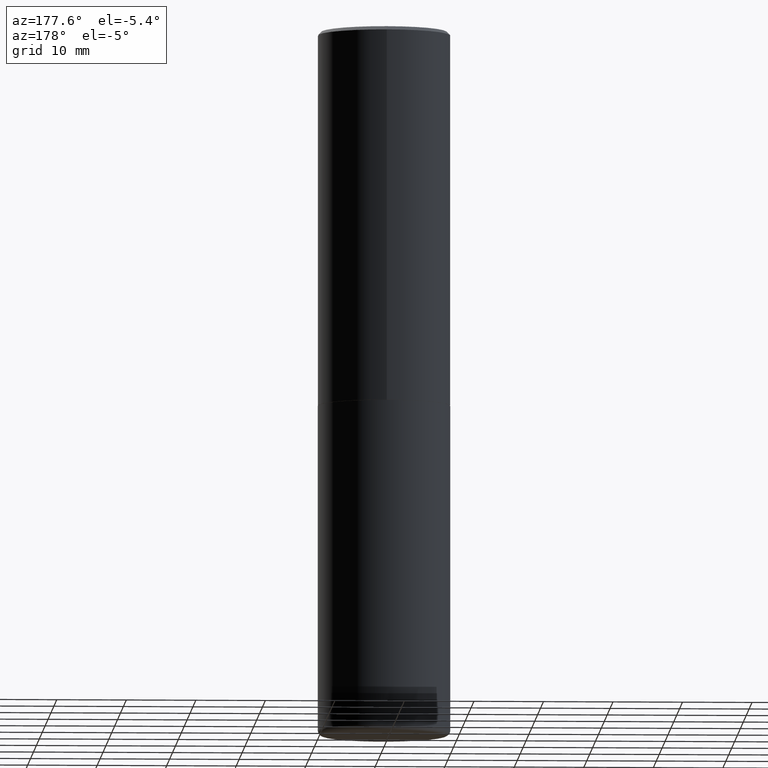
[diagram: clean part render]
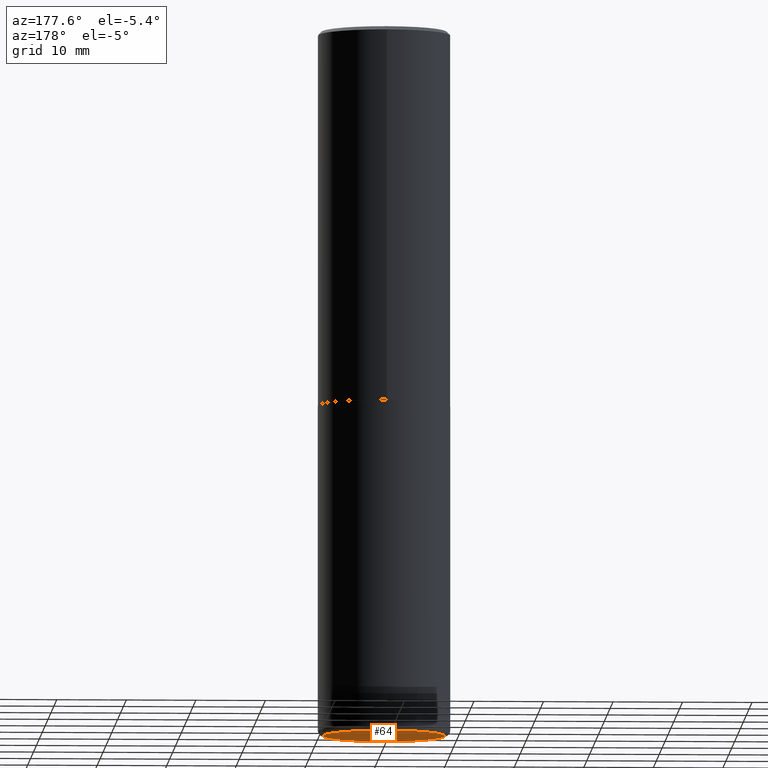
[diagram: same view with one face highlighted and labeled with its STEP entity id]
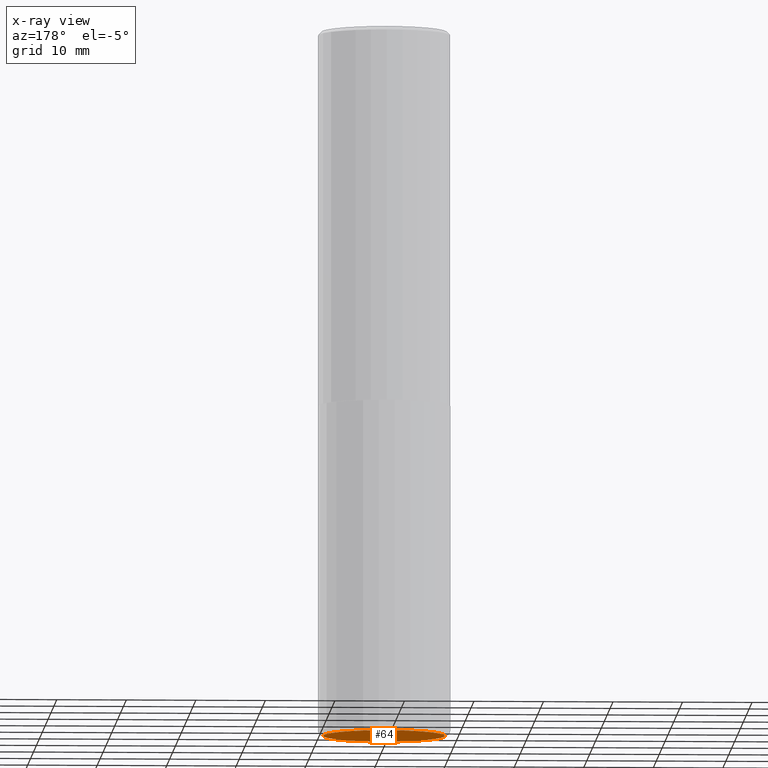
[diagram: x-ray of the same camera — body ghosted, the highlighted face saturated]
A machine part, auxiliary view. The second image highlights one B-rep face of the part: STEP entity #64.
The next image is the same camera in x-ray: the body ghosted, the highlighted face saturated — about 0% of this face is hidden behind the body in this view.
In plain terms, the highlighted planar face has unit normal (0, -0, -1).
Its self-contained STEP definition (entity closure, byte-faithful):
#5 = AXIS2_PLACEMENT_3D ( 'NONE', #256, #184, #371 ) ;
#33 = AXIS2_PLACEMENT_3D ( 'NONE', #50, #283, #321 ) ;
#50 = CARTESIAN_POINT ( 'NONE',  ( 9.781875224740546387E-29, -1.396592535537258233E-14, -4.000000000000000000 ) ) ;
#59 = EDGE_CURVE ( 'NONE', #374, #189, #197, .T. ) ;
#64 = ADVANCED_FACE ( 'NONE', ( #85 ), #372, .T. ) ;
#73 = CARTESIAN_POINT ( 'NONE',  ( 9.781875224740546387E-29, -1.396592535537258233E-14, -4.000000000000000000 ) ) ;
#85 = FACE_OUTER_BOUND ( 'NONE', #247, .T. ) ;
#109 = CARTESIAN_POINT ( 'NONE',  ( 0.3450000000000000289, -1.637504747917434403E-14, -4.000000000000000000 ) ) ;
#111 = CIRCLE ( 'NONE', #118, 0.3450000000000000289 ) ;
#118 = AXIS2_PLACEMENT_3D ( 'NONE', #73, #210, #327 ) ;
#124 = ORIENTED_EDGE ( 'NONE', *, *, #405, .F. ) ;
#184 = DIRECTION ( 'NONE',  ( -2.445468806185136597E-29, 3.491481338843145583E-15, 1.000000000000000000 ) ) ;
#189 = VERTEX_POINT ( 'NONE', #290 ) ;
#197 = CIRCLE ( 'NONE', #5, 0.3450000000000000289 ) ;
#209 = ORIENTED_EDGE ( 'NONE', *, *, #59, .F. ) ;
#210 = DIRECTION ( 'NONE',  ( -2.445468806185136597E-29, 3.491481338843145583E-15, 1.000000000000000000 ) ) ;
#247 = EDGE_LOOP ( 'NONE', ( #209, #124 ) ) ;
#256 = CARTESIAN_POINT ( 'NONE',  ( 9.781875224740546387E-29, -1.396592535537258233E-14, -4.000000000000000000 ) ) ;
#283 = DIRECTION ( 'NONE',  ( 2.438088387897960049E-29, -3.491481338843145188E-15, -1.000000000000000000 ) ) ;
#290 = CARTESIAN_POINT ( 'NONE',  ( -0.3450000000000000289, -1.135559928655357428E-14, -4.000000000000000000 ) ) ;
#321 = DIRECTION ( 'NONE',  ( -1.000000000000000000, 6.982962677686265922E-15, -4.876176775795935793E-29 ) ) ;
#327 = DIRECTION ( 'NONE',  ( 1.000000000000000000, -6.982962677686267499E-15, 0.000000000000000000 ) ) ;
#371 = DIRECTION ( 'NONE',  ( 1.000000000000000000, -6.982962677686267499E-15, 0.000000000000000000 ) ) ;
#372 = PLANE ( 'NONE',  #33 ) ;
#374 = VERTEX_POINT ( 'NONE', #109 ) ;
#405 = EDGE_CURVE ( 'NONE', #189, #374, #111, .T. ) ;